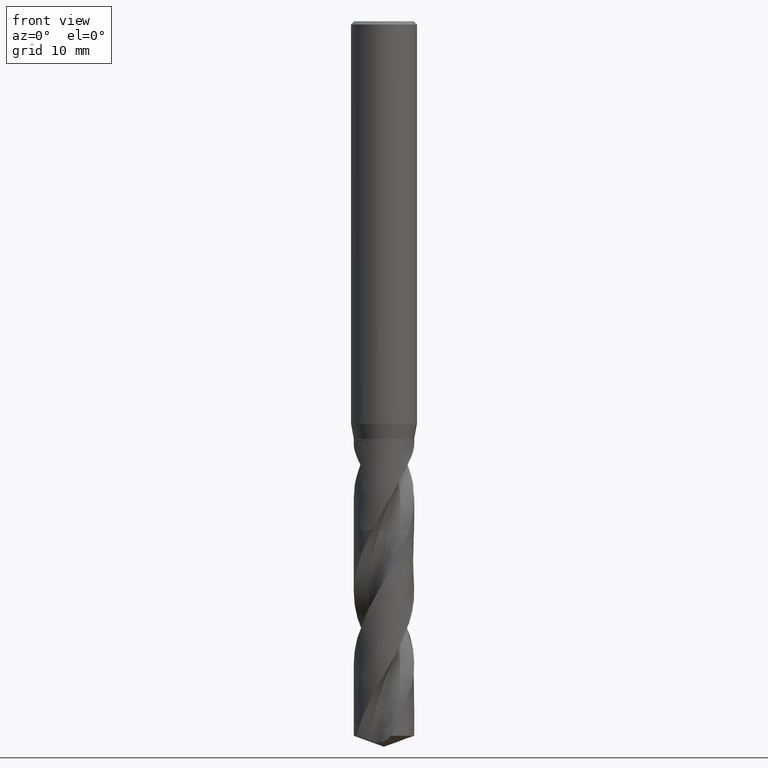
[diagram: clean part render]
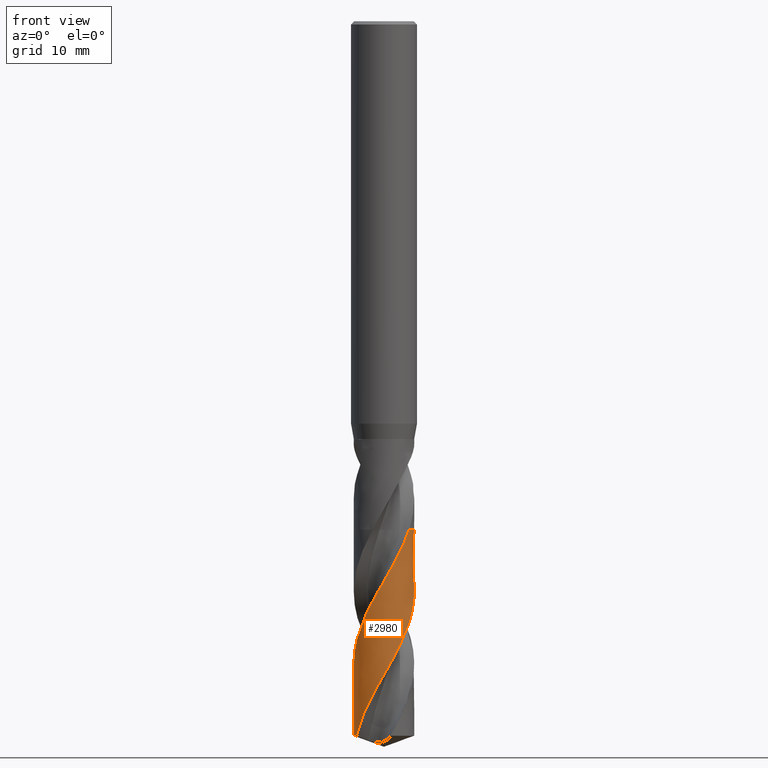
[diagram: same view with one face highlighted and labeled with its STEP entity id]
A machine part, front view. The second image highlights one B-rep face of the part: STEP entity #2980.
In plain terms, the highlighted face is a freeform B-spline surface patch.
Its self-contained STEP definition (entity closure, byte-faithful):
#1632 = VERTEX_POINT('', #1633);
#1633 = CARTESIAN_POINT('', (2.27851248448956, -1.539766494643, -46.25));
#1688 = EDGE_CURVE('', #1689, #1632, #1691, .T.);
#1689 = VERTEX_POINT('', #1690);
#1690 = CARTESIAN_POINT('', (1.05550709627514, 2.53937093976302, -46.25));
#1691 = CIRCLE('', #1692, 2.75);
#1692 = AXIS2_PLACEMENT_3D('', #1693, #1694, #1695);
#1693 = CARTESIAN_POINT('', (1.73409724870277E-31, 2.83199572302825E-15, -46.25));
#1694 = DIRECTION('', (3.74939945665464E-33, 6.12323399573677E-17, -1.));
#1695 = DIRECTION('', (-1., 6.12323399573677E-17, 0.));
#2713 = EDGE_CURVE('', #1689, #2714, #2716, .T.);
#2714 = VERTEX_POINT('', #2715);
#2715 = CARTESIAN_POINT('', (-2.51018190618321, -1.12315929318615, -64.9990818557679));
#2716 = B_SPLINE_CURVE_WITH_KNOTS('', 3, (#2717, #2718, #2719, #2720, #2721, #2722, #2723, #2724, #2725, #2726, #2727, #2728, #2729, #2730, #2731, #2732, #2733, #2734, #2735, #2736, #2737, #2738, #2739, #2740, #2741, #2742, #2743, #2744, #2745, #2746, #2747, #2748, #2749, #2750, #2751, #2752, #2753, #2754, #2755, #2756, #2757, #2758, #2759, #2760, #2761, #2762, #2763, #2764, #2765, #2766, #2767, #2768, #2769, #2770, #2771, #2772, #2773, #2774, #2775, #2776, #2777, #2778, #2779, #2780, #2781, #2782, #2783, #2784, #2785, #2786, #2787, #2788, #2789, #2790, #2791, #2792, #2793, #2794, #2795, #2796, #2797, #2798, #2799, #2800, #2801, #2802, #2803, #2804, #2805, #2806, #2807, #2808, #2809, #2810, #2811, #2812, #2813, #2814, #2815, #2816, #2817, #2818, #2819, #2820, #2821, #2822, #2823, #2824, #2825, #2826, #2827, #2828, #2829, #2830, #2831, #2832, #2833, #2834, #2835, #2836, #2837, #2838, #2839, #2840, #2841, #2842, #2843, #2844, #2845, #2846, #2847, #2848, #2849, #2850, #2851, #2852, #2853, #2854, #2855, #2856, #2857, #2858, #2859, #2860, #2861, #2862, #2863, #2864, #2865, #2866, #2867), .UNSPECIFIED., .F., .U., (4, 3, 3, 3, 3, 3, 3, 3, 3, 3, 3, 3, 3, 3, 3, 3, 3, 3, 3, 3, 3, 3, 3, 3, 3, 3, 3, 3, 3, 3, 3, 3, 3, 3, 3, 3, 3, 3, 3, 3, 3, 3, 3, 3, 3, 3, 3, 3, 3, 3, 4), (7.84112753567192, 8.12763154932937, 8.57132137583016, 9.01491988038255, 9.45842765456452, 9.90184654895855, 10.3451768665706, 10.7884193813428, 11.2315742534327, 11.6746411246721, 12.1176196771775, 12.5605093761318, 13.0033092357679, 13.4460177646074, 13.8886333578706, 14.331154177292, 14.3700771117022, 15.03700179051, 15.4810716542924, 15.9250421956442, 16.3689160566041, 16.8126956807102, 17.2563832052531, 17.6999803097131, 18.1434881949494, 18.5869079006108, 19.0302402722565, 19.473485792106, 19.9166445215564, 20.3597163265428, 20.8027009117862, 21.2455976505883, 21.6884054998157, 22.1311231336117, 22.5737490250528, 23.0162812855332, 23.0746582315876, 23.7415657945552, 24.4081241128907, 24.8520414140324, 25.2958645160397, 25.7395955155255, 26.1832362104579, 26.6267881448786, 27.0702525321486, 27.5136302018899, 27.9569216976369, 28.4001273553945, 28.8432473231719, 29.2862812887084, 29.4363340041967), .UNSPECIFIED.);
#2717 = CARTESIAN_POINT('', (1.05550709627514, 2.53937093976302, -46.25));
#2718 = CARTESIAN_POINT('', (1.09944157295304, 2.5211092706313, -46.3328056685109));
#2719 = CARTESIAN_POINT('', (1.14290675391205, 2.50170483213571, -46.4156326704012));
#2720 = CARTESIAN_POINT('', (1.1858269649163, 2.48119213469603, -46.4984432389844));
#2721 = CARTESIAN_POINT('', (1.25229465844264, 2.44942547617041, -46.626686492327));
#2722 = CARTESIAN_POINT('', (1.31749271683566, 2.41498213946297, -46.7549588710093));
#2723 = CARTESIAN_POINT('', (1.3811881471701, 2.37798639653738, -46.8832071227103));
#2724 = CARTESIAN_POINT('', (1.44487046746582, 2.34099826821805, -47.0114289778624));
#2725 = CARTESIAN_POINT('', (1.5070745574111, 2.30144480849375, -47.1396790548905));
#2726 = CARTESIAN_POINT('', (1.56757395783966, 2.25947159457757, -47.2679072715777));
#2727 = CARTESIAN_POINT('', (1.62806098416651, 2.21750696555339, -47.3961092614101));
#2728 = CARTESIAN_POINT('', (1.68686836311869, 2.17310677973823, -47.5243405141049));
#2729 = CARTESIAN_POINT('', (1.74378463277059, 2.12643249469932, -47.6525493671728));
#2730 = CARTESIAN_POINT('', (1.80068949629554, 2.07976756327447, -47.7807325269467));
#2731 = CARTESIAN_POINT('', (1.85572695548475, 2.03081058562965, -47.9089442555659));
#2732 = CARTESIAN_POINT('', (1.90869834170704, 1.97974004363321, -48.0371337003309));
#2733 = CARTESIAN_POINT('', (1.96165914643405, 1.92867970342187, -48.1652975381391));
#2734 = CARTESIAN_POINT('', (2.01257584804705, 1.87548628417745, -48.2934901773299));
#2735 = CARTESIAN_POINT('', (2.06126536375136, 1.82035301526902, -48.4216604867682));
#2736 = CARTESIAN_POINT('', (2.10994523635756, 1.76523066566247, -48.5498054117094));
#2737 = CARTESIAN_POINT('', (2.15641798096293, 1.70814754520586, -48.6779792413929));
#2738 = CARTESIAN_POINT('', (2.20051706757825, 1.64931035141868, -48.8061306377889));
#2739 = CARTESIAN_POINT('', (2.24460743444736, 1.59048479155495, -48.934256694711));
#2740 = CARTESIAN_POINT('', (2.28634240422366, 1.5298827228743, -49.062411501953));
#2741 = CARTESIAN_POINT('', (2.32557241771383, 1.4677237239919, -49.1905440829222));
#2742 = CARTESIAN_POINT('', (2.36479464098265, 1.40557706852509, -49.3186512195675));
#2743 = CARTESIAN_POINT('', (2.40152859708068, 1.34184922134095, -49.4467869336071));
#2744 = CARTESIAN_POINT('', (2.43564273636984, 1.27677110743032, -49.574900526304));
#2745 = CARTESIAN_POINT('', (2.4697500755171, 1.21170596586542, -49.7029885814782));
#2746 = CARTESIAN_POINT('', (2.50125226970809, 1.14526513309447, -49.8311052912419));
#2747 = CARTESIAN_POINT('', (2.53003699211665, 1.07768864637303, -49.9591997536792));
#2748 = CARTESIAN_POINT('', (2.55881594082626, 1.01012571428259, -50.0872685226653));
#2749 = CARTESIAN_POINT('', (2.58488979281479, 0.941401128668003, -50.2153660597805));
#2750 = CARTESIAN_POINT('', (2.60816605699832, 0.871762478615503, -50.3434412768039));
#2751 = CARTESIAN_POINT('', (2.63143759963672, 0.802137954628364, -50.4714905140176));
#2752 = CARTESIAN_POINT('', (2.65192177680565, 0.731572524362271, -50.5995684054202));
#2753 = CARTESIAN_POINT('', (2.66954618226545, 0.660320513653777, -50.7276241647221));
#2754 = CARTESIAN_POINT('', (2.68716695255925, 0.589083199207624, -50.8556535115618));
#2755 = CARTESIAN_POINT('', (2.70193614393978, 0.517131192342766, -50.9837112976578));
#2756 = CARTESIAN_POINT('', (2.71380186434099, 0.444724005535361, -51.1117470900967));
#2757 = CARTESIAN_POINT('', (2.72566509383115, 0.372332018804736, -51.2397560046253));
#2758 = CARTESIAN_POINT('', (2.73463081245065, 0.299456206927376, -51.3677934277499));
#2759 = CARTESIAN_POINT('', (2.74066812226668, 0.226358661401115, -51.4958087310685));
#2760 = CARTESIAN_POINT('', (2.74670413936041, 0.153276767684963, -51.6237966234637));
#2761 = CARTESIAN_POINT('', (2.74981537446466, 0.0799447181983255, -51.7518131627035));
#2762 = CARTESIAN_POINT('', (2.74999201887804, 0.00662541373740443, -51.8798074816453));
#2763 = CARTESIAN_POINT('', (2.75000755604288, 0.000176446020443386, -51.891065515759));
#2764 = CARTESIAN_POINT('', (2.75000040791138, -0.00627254326709554, -51.9023235916784));
#2765 = CARTESIAN_POINT('', (2.74997057559453, -0.0127213743090256, -51.9135816752785));
#2766 = CARTESIAN_POINT('', (2.74945941402269, -0.123218813325363, -52.1064832101393));
#2767 = CARTESIAN_POINT('', (2.74227618110158, -0.233721289063633, -52.2994787556907));
#2768 = CARTESIAN_POINT('', (2.72848392258922, -0.343329993114703, -52.4923949371487));
#2769 = CARTESIAN_POINT('', (2.71930038724639, -0.416312630920716, -52.6208476172544));
#2770 = CARTESIAN_POINT('', (2.70718519031086, -0.488935049540611, -52.7493292144338));
#2771 = CARTESIAN_POINT('', (2.69218335722671, -0.56093562114709, -52.8777883770549));
#2772 = CARTESIAN_POINT('', (2.67718487951217, -0.632920088819577, -53.0062188079891));
#2773 = CARTESIAN_POINT('', (2.65929518025745, -0.704311135593216, -53.1346780040781));
#2774 = CARTESIAN_POINT('', (2.63858018644499, -0.774851340387313, -53.2631150004957));
#2775 = CARTESIAN_POINT('', (2.61786970359334, -0.845376184129259, -53.3915240280775));
#2776 = CARTESIAN_POINT('', (2.59432685635958, -0.915078783236804, -53.5199615875706));
#2777 = CARTESIAN_POINT('', (2.56803803512849, -0.983707603982727, -53.6483770807581));
#2778 = CARTESIAN_POINT('', (2.54175479515826, -1.05232185445379, -53.7767653106324));
#2779 = CARTESIAN_POINT('', (2.51271627580229, -1.11989017099146, -53.9051821778541));
#2780 = CARTESIAN_POINT('', (2.48102837921365, -1.18616954164929, -54.0335768190051));
#2781 = CARTESIAN_POINT('', (2.44934705895541, -1.25243515705394, -54.161944813844));
#2782 = CARTESIAN_POINT('', (2.41500513151206, -1.31743819374331, -54.2903416021009));
#2783 = CARTESIAN_POINT('', (2.37812721831496, -1.38094566638574, -54.4187160558447));
#2784 = CARTESIAN_POINT('', (2.34125682055109, -1.44444019669687, -54.5470643478686));
#2785 = CARTESIAN_POINT('', (2.30183714452353, -1.50646442315779, -54.6754413062804));
#2786 = CARTESIAN_POINT('', (2.26001119206081, -1.56679590622387, -54.8037961563165));
#2787 = CARTESIAN_POINT('', (2.21819365191408, -1.62711525501757, -54.9321251907646));
#2788 = CARTESIAN_POINT('', (2.1739541370966, -1.68576655578508, -55.0604826237604));
#2789 = CARTESIAN_POINT('', (2.12745320032133, -1.74253920485093, -55.1888181246253));
#2790 = CARTESIAN_POINT('', (2.08096150900251, -1.79930056620753, -55.3171281094391));
#2791 = CARTESIAN_POINT('', (2.03219077553819, -1.85420666064814, -55.4454665777106));
#2792 = CARTESIAN_POINT('', (1.98131732774939, -1.9070609971262, -55.5737829567633));
#2793 = CARTESIAN_POINT('', (1.93045389977349, -1.95990492364415, -55.7020740631803));
#2794 = CARTESIAN_POINT('', (1.87746883609435, -2.01071845038215, -55.8303938416035));
#2795 = CARTESIAN_POINT('', (1.82255291107454, -2.0593204914082, -55.9586913850263));
#2796 = CARTESIAN_POINT('', (1.76764774445415, -2.10791301096721, -56.0869637940966));
#2797 = CARTESIAN_POINT('', (1.7107912918049, -2.15431364615192, -56.215264776624));
#2798 = CARTESIAN_POINT('', (1.65218832183028, -2.19835705680575, -56.3435437347408));
#2799 = CARTESIAN_POINT('', (1.59359682670409, -2.24239184346899, -56.4717975749907));
#2800 = CARTESIAN_POINT('', (1.53323628313502, -2.28408775356402, -56.6000796905716));
#2801 = CARTESIAN_POINT('', (1.47132443136572, -2.32329602454494, -56.7283400015553));
#2802 = CARTESIAN_POINT('', (1.40942472344956, -2.36249660492267, -56.8565751546034));
#2803 = CARTESIAN_POINT('', (1.34594967959484, -2.39922614255201, -56.9848386398763));
#2804 = CARTESIAN_POINT('', (1.28112756934978, -2.43335409487643, -57.1130801725903));
#2805 = CARTESIAN_POINT('', (1.21631821949194, -2.46747532903193, -57.2412964606524));
#2806 = CARTESIAN_POINT('', (1.15013722326684, -2.49900925022071, -57.3695412983079));
#2807 = CARTESIAN_POINT('', (1.08282156728164, -2.52784442824904, -57.4977640027758));
#2808 = CARTESIAN_POINT('', (1.01551926038582, -2.55667388809245, -57.6259612799294));
#2809 = CARTESIAN_POINT('', (0.947056956282469, -2.58281671502744, -57.7541870393894));
#2810 = CARTESIAN_POINT('', (0.877679843216361, -2.60618074830041, -57.8823908547374));
#2811 = CARTESIAN_POINT('', (0.808316654168063, -2.62954009240139, -58.010568939522));
#2812 = CARTESIAN_POINT('', (0.738011715825413, -2.65013093216454, -58.1387751829092));
#2813 = CARTESIAN_POINT('', (0.667017394784072, -2.66788076852311, -58.266959745396));
#2814 = CARTESIAN_POINT('', (0.596037537766596, -2.6856269886198, -58.3951181922085));
#2815 = CARTESIAN_POINT('', (0.524340364366837, -2.70054043086369, -58.5233048199423));
#2816 = CARTESIAN_POINT('', (0.452182562269384, -2.71256906462849, -58.6514696336999));
#2817 = CARTESIAN_POINT('', (0.38003971310396, -2.72459520575442, -58.7796078884481));
#2818 = CARTESIAN_POINT('', (0.307408530593654, -2.73374241191421, -58.907774566602));
#2819 = CARTESIAN_POINT('', (0.234547849029223, -2.73997943541841, -59.0359192180931));
#2820 = CARTESIAN_POINT('', (0.161702580064329, -2.74621513957254, -59.1640367624785));
#2821 = CARTESIAN_POINT('', (0.0886001823241167, -2.74954426275658, -59.2921826958356));
#2822 = CARTESIAN_POINT('', (0.0155011031154887, -2.74995631161702, -59.4203067655134));
#2823 = CARTESIAN_POINT('', (0.00585818804539256, -2.75001066732449, -59.4372083398659));
#2824 = CARTESIAN_POINT('', (-0.00378495548570065, -2.75001430165989, -59.4541100230937));
#2825 = CARTESIAN_POINT('', (-0.0134277250595619, -2.74996721729545, -59.4710117022763));
#2826 = CARTESIAN_POINT('', (-0.123588266016363, -2.74942931798994, -59.6640991869008));
#2827 = CARTESIAN_POINT('', (-0.233751507492908, -2.74226005978379, -59.8572797352573));
#2828 = CARTESIAN_POINT('', (-0.343027612872604, -2.72852195461332, -60.0503818017857));
#2829 = CARTESIAN_POINT('', (-0.452246492790565, -2.71479104378245, -60.2433827450641));
#2830 = CARTESIAN_POINT('', (-0.560674012901327, -2.69448627821881, -60.4364766123725));
#2831 = CARTESIAN_POINT('', (-0.66743642048129, -2.66777596971993, -60.6294921907509));
#2832 = CARTESIAN_POINT('', (-0.738538495922544, -2.649987326573, -60.7580375142059));
#2833 = CARTESIAN_POINT('', (-0.808936803007958, -2.62935192035506, -60.8866115035554));
#2834 = CARTESIAN_POINT('', (-0.878380154613328, -2.60594480063978, -61.015163317248));
#2835 = CARTESIAN_POINT('', (-0.947808770357784, -2.58254264790913, -61.1436878522796));
#2836 = CARTESIAN_POINT('', (-1.01630951096507, -2.55636094341797, -61.2722408082069));
#2837 = CARTESIAN_POINT('', (-1.08363737789529, -2.52749481368968, -61.4007719500786));
#2838 = CARTESIAN_POINT('', (-1.15095127289325, -2.49863467428349, -61.529276419066));
#2839 = CARTESIAN_POINT('', (-1.21711958546214, -2.46707971622925, -61.6578090098598));
#2840 = CARTESIAN_POINT('', (-1.28190534718079, -2.43294444672896, -61.7863199242241));
#2841 = CARTESIAN_POINT('', (-1.34667792422384, -2.39881612416335, -61.9148046850839));
#2842 = CARTESIAN_POINT('', (-1.41009409933406, -2.36209509104869, -62.0433177738133));
#2843 = CARTESIAN_POINT('', (-1.47192784916802, -2.32291377516334, -62.1718089205048));
#2844 = CARTESIAN_POINT('', (-1.53374922773997, -2.28374029840025, -62.3002743595908));
#2845 = CARTESIAN_POINT('', (-1.59401239638366, -2.2420926079414, -62.4287683510128));
#2846 = CARTESIAN_POINT('', (-1.65250347773639, -2.19812016415598, -62.557240257512));
#2847 = CARTESIAN_POINT('', (-1.7109830142685, -2.15415639953949, -62.6856868065537));
#2848 = CARTESIAN_POINT('', (-1.76771343986839, -2.10785202634344, -62.8141616944699));
#2849 = CARTESIAN_POINT('', (-1.82249302027758, -2.059373494789, -62.9426148544213));
#2850 = CARTESIAN_POINT('', (-1.8772618887785, -2.0109044430002, -63.0710428959169));
#2851 = CARTESIAN_POINT('', (-1.93010237037475, -1.96024285746181, -63.1994989249093));
#2852 = CARTESIAN_POINT('', (-1.98082620565845, -1.90757111085714, -63.3279334195916));
#2853 = CARTESIAN_POINT('', (-2.03154018235931, -1.85490960142744, -63.4563429520032));
#2854 = CARTESIAN_POINT('', (-2.08015838080769, -1.80021793570583, -63.5847806528451));
#2855 = CARTESIAN_POINT('', (-2.12650843112352, -1.74369202910393, -63.7131965581721));
#2856 = CARTESIAN_POINT('', (-2.17284950631763, -1.68717706805416, -63.8415875973259));
#2857 = CARTESIAN_POINT('', (-2.2169409571634, -1.62880710130031, -63.9700070766557));
#2858 = CARTESIAN_POINT('', (-2.25862730877609, -1.56879019631398, -64.0984045618829));
#2859 = CARTESIAN_POINT('', (-2.30030560069328, -1.50878489507708, -64.2267772225671));
#2860 = CARTESIAN_POINT('', (-2.33959547266438, -1.44711058350848, -64.3551781358394));
#2861 = CARTESIAN_POINT('', (-2.37635823010152, -1.38398755855273, -64.4835574160634));
#2862 = CARTESIAN_POINT('', (-2.4131138524968, -1.32087678472984, -64.6119117799971));
#2863 = CARTESIAN_POINT('', (-2.44735779103448, -1.25629301147225, -64.7402940473655));
#2864 = CARTESIAN_POINT('', (-2.47896903567191, -1.19046735368084, -64.8686548680228));
#2865 = CARTESIAN_POINT('', (-2.48967555812119, -1.16817263257873, -64.9121298410502));
#2866 = CARTESIAN_POINT('', (-2.50008123792344, -1.14573357526692, -64.9556061639281));
#2867 = CARTESIAN_POINT('', (-2.51018190618321, -1.12315929318615, -64.9990818557679));
#2980 = ADVANCED_FACE('', (#2981), #3111, .T.);
#2981 = FACE_OUTER_BOUND('', #2982, .T.);
#2982 = EDGE_LOOP('', (#2983, #2984, #3002, #3095, #3103, #3110));
#2983 = ORIENTED_EDGE('', *, *, #1688, .T.);
#2984 = ORIENTED_EDGE('', *, *, #2985, .T.);
#2985 = EDGE_CURVE('', #1632, #2986, #2988, .T.);
#2986 = VERTEX_POINT('', #2987);
#2987 = CARTESIAN_POINT('', (1.75344940283504, -2.11847001198918, -47.6103389989093));
#2988 = B_SPLINE_CURVE_WITH_KNOTS('', 3, (#2989, #2990, #2991, #2992, #2993, #2994, #2995, #2996, #2997, #2998, #2999, #3000, #3001), .UNSPECIFIED., .F., .U., (4, 3, 3, 3, 4), (3.31862742394295, 3.57209942373601, 4.01557186713883, 4.45895494247356, 4.88863834727692), .UNSPECIFIED.);
#2989 = CARTESIAN_POINT('', (2.27851248448956, -1.539766494643, -46.25));
#2990 = CARTESIAN_POINT('', (2.2548790320606, -1.57473875608546, -46.3231920323397));
#2991 = CARTESIAN_POINT('', (2.23043786397322, -1.60916991114983, -46.3964027689595));
#2992 = CARTESIAN_POINT('', (2.20522492506216, -1.64301035598823, -46.4695997958577));
#2993 = CARTESIAN_POINT('', (2.16111258273881, -1.70221730890839, -46.597664688212));
#2994 = CARTESIAN_POINT('', (2.11461034657348, -1.75965128987847, -46.7257605133112));
#2995 = CARTESIAN_POINT('', (2.06588540642521, -1.81510812006319, -46.8538323637174));
#2996 = CARTESIAN_POINT('', (2.01717028527208, -1.87055377464986, -46.9818784052284));
#2997 = CARTESIAN_POINT('', (1.96621530918814, -1.92404329073986, -47.1099537371837));
#2998 = CARTESIAN_POINT('', (1.91320916729237, -1.97538114858586, -47.2380082008359));
#2999 = CARTESIAN_POINT('', (1.86184081159213, -2.02513276695318, -47.3621060318161));
#3000 = CARTESIAN_POINT('', (1.8085264845288, -2.07288292533736, -47.4862320460251));
#3001 = CARTESIAN_POINT('', (1.75344940283505, -2.11847001198917, -47.6103389989092));
#3002 = ORIENTED_EDGE('', *, *, #3003, .T.);
#3003 = EDGE_CURVE('', #2986, #3004, #3006, .T.);
#3004 = VERTEX_POINT('', #3005);
#3005 = CARTESIAN_POINT('', (-2.75, 3.74831120424319E-15, -58.4645674467596));
#3006 = B_SPLINE_CURVE_WITH_KNOTS('', 3, (#3007, #3008, #3009, #3010, #3011, #3012, #3013, #3014, #3015, #3016, #3017, #3018, #3019, #3020, #3021, #3022, #3023, #3024, #3025, #3026, #3027, #3028, #3029, #3030, #3031, #3032, #3033, #3034, #3035, #3036, #3037, #3038, #3039, #3040, #3041, #3042, #3043, #3044, #3045, #3046, #3047, #3048, #3049, #3050, #3051, #3052, #3053, #3054, #3055, #3056, #3057, #3058, #3059, #3060, #3061, #3062, #3063, #3064, #3065, #3066, #3067, #3068, #3069, #3070, #3071, #3072, #3073, #3074, #3075, #3076, #3077, #3078, #3079, #3080, #3081, #3082, #3083, #3084, #3085, #3086, #3087, #3088, #3089, #3090, #3091, #3092, #3093, #3094), .UNSPECIFIED., .F., .U., (4, 3, 3, 3, 3, 3, 3, 3, 3, 3, 3, 3, 3, 3, 3, 3, 3, 3, 3, 3, 3, 3, 3, 3, 3, 3, 3, 3, 3, 4), (0., 0.664623888491324, 1.3289509450817, 1.99298079679927, 2.6567102463961, 3.09937570301452, 3.54194705065201, 3.73882724421979, 3.79719744075242, 3.83611926384422, 4.28034990461804, 4.72447504129222, 5.16849812806312, 5.61242242997775, 6.05625076096501, 6.49998538143142, 6.94362805343517, 7.38718044249119, 7.83064392362632, 8.27401944662314, 8.71730753304217, 9.1605086035322, 9.60362286142294, 10.0466501421529, 10.4895898679676, 10.9324412917977, 11.3752034534322, 11.8178750230885, 12.2604542202968, 12.5096113417154), .UNSPECIFIED.);
#3007 = CARTESIAN_POINT('', (1.75344940283504, -2.11847001198918, -47.6103389989093));
#3008 = CARTESIAN_POINT('', (1.66825750621337, -2.18898301402001, -47.8023046291677));
#3009 = CARTESIAN_POINT('', (1.57878297064802, -2.25436559297204, -47.9943696205875));
#3010 = CARTESIAN_POINT('', (1.48576191764281, -2.31408978306425, -48.1863608983101));
#3011 = CARTESIAN_POINT('', (1.39278240936157, -2.37378729935616, -48.3782664295873));
#3012 = CARTESIAN_POINT('', (1.29617609146058, -2.4278852053305, -48.5702717331608));
#3013 = CARTESIAN_POINT('', (1.19673363607577, -2.47595004074898, -48.7622031923061));
#3014 = CARTESIAN_POINT('', (1.09733566899232, -2.52399337304915, -48.9540487856655));
#3015 = CARTESIAN_POINT('', (0.995015826976448, -2.56605177141857, -49.1459940187564));
#3016 = CARTESIAN_POINT('', (0.890608474779289, -2.60179102632233, -49.3378654856199));
#3017 = CARTESIAN_POINT('', (0.786248355684588, -2.63751411305543, -49.5296501512719));
#3018 = CARTESIAN_POINT('', (0.679710575087579, -2.66695533670953, -49.7215342964516));
#3019 = CARTESIAN_POINT('', (0.571861055768368, -2.68988381401426, -49.9133448735154));
#3020 = CARTESIAN_POINT('', (0.499932264986952, -2.70517565451015, -50.0412703659458));
#3021 = CARTESIAN_POINT('', (0.427385589800574, -2.71758094645215, -50.1692274199491));
#3022 = CARTESIAN_POINT('', (0.354482642396549, -2.72705739877979, -50.2971644359127));
#3023 = CARTESIAN_POINT('', (0.281595193879964, -2.73653183644995, -50.4250742529566));
#3024 = CARTESIAN_POINT('', (0.208323081300998, -2.74308236507796, -50.5530153211168));
#3025 = CARTESIAN_POINT('', (0.134931194593657, -2.74668774576317, -50.680936775972));
#3026 = CARTESIAN_POINT('', (0.102282427477623, -2.7482916183387, -50.737843308507));
#3027 = CARTESIAN_POINT('', (0.0696056798727111, -2.74931324392709, -50.7947531807347));
#3028 = CARTESIAN_POINT('', (0.0369243195663789, -2.74975209693975, -50.8516619141871));
#3029 = CARTESIAN_POINT('', (0.0272350898400905, -2.74988220620129, -50.8685339717356));
#3030 = CARTESIAN_POINT('', (0.0175453111854046, -2.74996110034581, -50.8854061867203));
#3031 = CARTESIAN_POINT('', (0.00785559531793498, -2.74998877990842, -50.9022784440464));
#3032 = CARTESIAN_POINT('', (0.00139439715163139, -2.75000723691393, -50.9135290317404));
#3033 = CARTESIAN_POINT('', (-0.00506679798991527, -2.75000292235382, -50.9247796815717));
#3034 = CARTESIAN_POINT('', (-0.0115278089709305, -2.74997583800664, -50.9360303593027));
#3035 = CARTESIAN_POINT('', (-0.085269962347813, -2.74966671330616, -51.0644389327088));
#3036 = CARTESIAN_POINT('', (-0.159003807105701, -2.74638905006514, -51.1928793149361));
#3037 = CARTESIAN_POINT('', (-0.232462559496807, -2.74015714119335, -51.3212994748639));
#3038 = CARTESIAN_POINT('', (-0.305903865546259, -2.73392671239042, -51.4496891351995));
#3039 = CARTESIAN_POINT('', (-0.37909902897134, -2.72474097155986, -51.578110298416));
#3040 = CARTESIAN_POINT('', (-0.451782579594532, -2.7126357110337, -51.7065116718309));
#3041 = CARTESIAN_POINT('', (-0.524449429183039, -2.70053323202239, -51.8348835415166));
#3042 = CARTESIAN_POINT('', (-0.59663457220059, -2.68550761903569, -51.9632865599028));
#3043 = CARTESIAN_POINT('', (-0.668075950897691, -2.66761588761057, -52.0916699439929));
#3044 = CARTESIAN_POINT('', (-0.739501435542124, -2.64972813668144, -52.2200247657525));
#3045 = CARTESIAN_POINT('', (-0.81021233731503, -2.62896835327133, -52.3484109715143));
#3046 = CARTESIAN_POINT('', (-0.879953462905476, -2.60541396003029, -52.4767772354599));
#3047 = CARTESIAN_POINT('', (-0.949679511329682, -2.58186465895689, -52.6051157482116));
#3048 = CARTESIAN_POINT('', (-1.01846327708447, -2.55551284164322, -52.7334858872769));
#3049 = CARTESIAN_POINT('', (-1.08605776348198, -2.52645572579069, -52.8618359347729));
#3050 = CARTESIAN_POINT('', (-1.15363797788719, -2.49740474509733, -52.9901588822642));
#3051 = CARTESIAN_POINT('', (-1.22005565902231, -2.46563830145448, -53.118513183662));
#3052 = CARTESIAN_POINT('', (-1.28507180850468, -2.43127342086128, -53.2468478204498));
#3053 = CARTESIAN_POINT('', (-1.35007448566661, -2.3969156611863, -53.3751558643778));
#3054 = CARTESIAN_POINT('', (-1.41370257020562, -2.35994658761321, -53.5034948573705));
#3055 = CARTESIAN_POINT('', (-1.47572672982329, -2.32050223419092, -53.6318143977046));
#3056 = CARTESIAN_POINT('', (-1.53773826729185, -2.2810659078425, -53.7601078245309));
#3057 = CARTESIAN_POINT('', (-1.59817154133012, -2.23913944464454, -53.8884324156366));
#3058 = CARTESIAN_POINT('', (-1.65681003301881, -2.19487596790529, -54.0167372475852));
#3059 = CARTESIAN_POINT('', (-1.71543677090681, -2.15062136356485, -54.1450163614537));
#3060 = CARTESIAN_POINT('', (-1.77229211718117, -2.10401360914706, -54.273326926026));
#3061 = CARTESIAN_POINT('', (-1.82717358994396, -2.05522180608597, -54.4016175311265));
#3062 = CARTESIAN_POINT('', (-1.88204417731849, -2.00643968056621, -54.529882690608));
#3063 = CARTESIAN_POINT('', (-1.93496276830946, -1.9554555910758, -54.6581790649483));
#3064 = CARTESIAN_POINT('', (-1.985740654026, -1.90245474452045, -54.7864558939254));
#3065 = CARTESIAN_POINT('', (-2.03650852600853, -1.84946435008166, -54.9147074258657));
#3066 = CARTESIAN_POINT('', (-2.08515696669966, -1.79443663478695, -55.0429897219458));
#3067 = CARTESIAN_POINT('', (-2.13151217559817, -1.73757182449438, -55.171252741292));
#3068 = CARTESIAN_POINT('', (-2.17785828512838, -1.68071817656879, -55.299490583048));
#3069 = CARTESIAN_POINT('', (-2.22193072702912, -1.62200530998618, -55.4277593767188));
#3070 = CARTESIAN_POINT('', (-2.26357307435204, -1.56164558625459, -55.5560085945323));
#3071 = CARTESIAN_POINT('', (-2.30520726492478, -1.50129768556419, -55.6842326913595));
#3072 = CARTESIAN_POINT('', (-2.34442836179623, -1.43928037354616, -55.8124880662022));
#3073 = CARTESIAN_POINT('', (-2.38109824015039, -1.3758165469105, -55.9407236177463));
#3074 = CARTESIAN_POINT('', (-2.41776092071786, -1.3123651773406, -56.0689339984366));
#3075 = CARTESIAN_POINT('', (-2.45188733827495, -1.24744367437355, -56.1971754605653));
#3076 = CARTESIAN_POINT('', (-2.4833574135593, -1.18128572179641, -56.3253974939131));
#3077 = CARTESIAN_POINT('', (-2.51482126945288, -1.1151408439309, -56.4535941869043));
#3078 = CARTESIAN_POINT('', (-2.54364238277048, -1.04773355513636, -56.5818214698295));
#3079 = CARTESIAN_POINT('', (-2.56971932719895, -0.979307193591558, -56.710029648993));
#3080 = CARTESIAN_POINT('', (-2.59579107307373, -0.910894473143196, -56.8382122692916));
#3081 = CARTESIAN_POINT('', (-2.61913023381526, -0.841435644420014, -56.9664256330802));
#3082 = CARTESIAN_POINT('', (-2.63965551137503, -0.771180122453507, -57.0946196072483));
#3083 = CARTESIAN_POINT('', (-2.66017665181061, -0.700938761358597, -57.2227877423313));
#3084 = CARTESIAN_POINT('', (-2.67789294657344, -0.629874117685964, -57.3509869824322));
#3085 = CARTESIAN_POINT('', (-2.69274366884305, -0.558239674249031, -57.4791665417444));
#3086 = CARTESIAN_POINT('', (-2.70759135255964, -0.486619887678688, -57.6073198746966));
#3087 = CARTESIAN_POINT('', (-2.71958022622122, -0.414403496186589, -57.7355041573503));
#3088 = CARTESIAN_POINT('', (-2.72866994508663, -0.341848403215456, -57.8636691283127));
#3089 = CARTESIAN_POINT('', (-2.73775776719688, -0.269308450343695, -57.9918073550409));
#3090 = CARTESIAN_POINT('', (-2.74395121415254, -0.196401177445415, -58.119976004362));
#3091 = CARTESIAN_POINT('', (-2.74723049978653, -0.123387929080364, -58.2481257225486));
#3092 = CARTESIAN_POINT('', (-2.74907662670353, -0.0822839393248403, -58.320269680275));
#3093 = CARTESIAN_POINT('', (-2.75, -0.0411392186234986, -58.3924199486332));
#3094 = CARTESIAN_POINT('', (-2.75, 3.49157212979863E-15, -58.4645674467596));
#3095 = ORIENTED_EDGE('', *, *, #3096, .T.);
#3096 = EDGE_CURVE('', #3004, #3097, #3099, .T.);
#3097 = VERTEX_POINT('', #3098);
#3098 = CARTESIAN_POINT('', (-2.75, 4.14843481199191E-15, -64.9990818557679));
#3099 = LINE('', #3100, #3101);
#3100 = CARTESIAN_POINT('', (-2.75, 3.74831120424319E-15, -58.4645674467596));
#3101 = VECTOR('', #3102, 6.53451440900836);
#3102 = DIRECTION('', (0., 4.00123607748717E-16, -6.53451440900836));
#3103 = ORIENTED_EDGE('', *, *, #3104, .F.);
#3104 = EDGE_CURVE('', #2714, #3097, #3105, .T.);
#3105 = CIRCLE('', #3106, 2.75);
#3106 = AXIS2_PLACEMENT_3D('', #3107, #3108, #3109);
#3107 = CARTESIAN_POINT('', (2.43707522193067E-31, 3.98004587710915E-15, -64.9990818557679));
#3108 = DIRECTION('', (3.74939945665464E-33, 6.12323399573677E-17, -1.));
#3109 = DIRECTION('', (-1., 6.12323399573677E-17, 0.));
#3110 = ORIENTED_EDGE('', *, *, #2713, .F.);
#3111 = (
   BOUNDED_SURFACE ()
   B_SPLINE_SURFACE (2, 1, ((#3112, #3113), (#3114, #3115), (#3116, #3117), (#3118, #3119), (#3120, #3121), (#3122, #3123), (#3124, #3125)), .UNSPECIFIED., .F., .F., .U.)
   B_SPLINE_SURFACE_WITH_KNOTS ((3, 2, 2, 3), (2, 2), (5.44567767284387, 8.63937979737193, 12.9590696960579, 17.2787595947439), (0.305565946430045, 1.), .UNSPECIFIED.)
   GEOMETRIC_REPRESENTATION_ITEM ()
   RATIONAL_B_SPLINE_SURFACE (((0.887108237612765, 0.887108237612765), (0.783453507746254, 0.783453507746254), (1., 1.), (0.707106781186548, 0.707106781186548), (1., 1.), (0.707106781186548, 0.707106781186548), (1., 1.)))
   REPRESENTATION_ITEM ('')
   SURFACE ()
);
#3112 = CARTESIAN_POINT('', (1.05550709627514, 2.539370939763, -46.25));
#3113 = CARTESIAN_POINT('', (1.05550709627514, 2.53937093976301, -64.9990818557679));
#3114 = CARTESIAN_POINT('', (2.75, 1.83504324329957, -46.25));
#3115 = CARTESIAN_POINT('', (2.75, 1.83504324329957, -64.9990818557679));
#3116 = CARTESIAN_POINT('', (2.75, 3.00038465791102E-15, -46.25));
#3117 = CARTESIAN_POINT('', (2.75, 4.14843481199191E-15, -64.9990818557679));
#3118 = CARTESIAN_POINT('', (2.75, -2.75, -46.25));
#3119 = CARTESIAN_POINT('', (2.75, -2.75, -64.9990818557679));
#3120 = CARTESIAN_POINT('', (3.36777869765522E-16, -2.75, -46.25));
#3121 = CARTESIAN_POINT('', (3.36777869765522E-16, -2.75, -64.9990818557679));
#3122 = CARTESIAN_POINT('', (-2.75, -2.75, -46.25));
#3123 = CARTESIAN_POINT('', (-2.75, -2.75, -64.9990818557679));
#3124 = CARTESIAN_POINT('', (-2.75, 3.00038465791102E-15, -46.25));
#3125 = CARTESIAN_POINT('', (-2.75, 4.14843481199191E-15, -64.9990818557679));